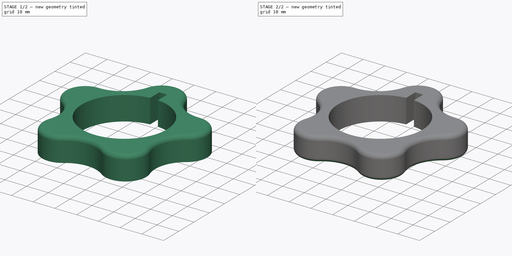
[diagram: build sequence overview — one tinted view per stage of 2, left to right]
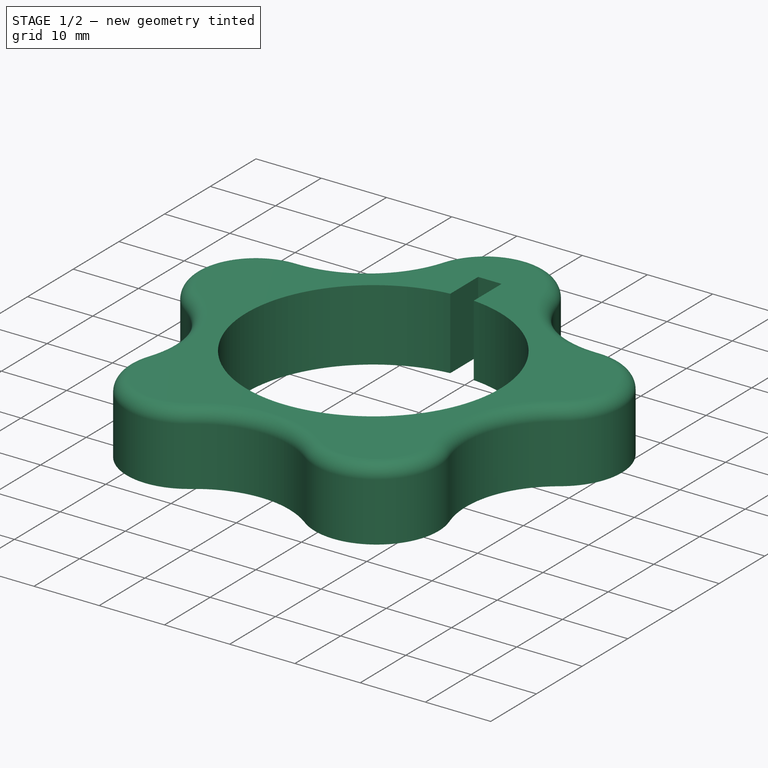
[diagram: stage 1 of 2 — iso view after this stage's code; geometry added in this stage tinted green]
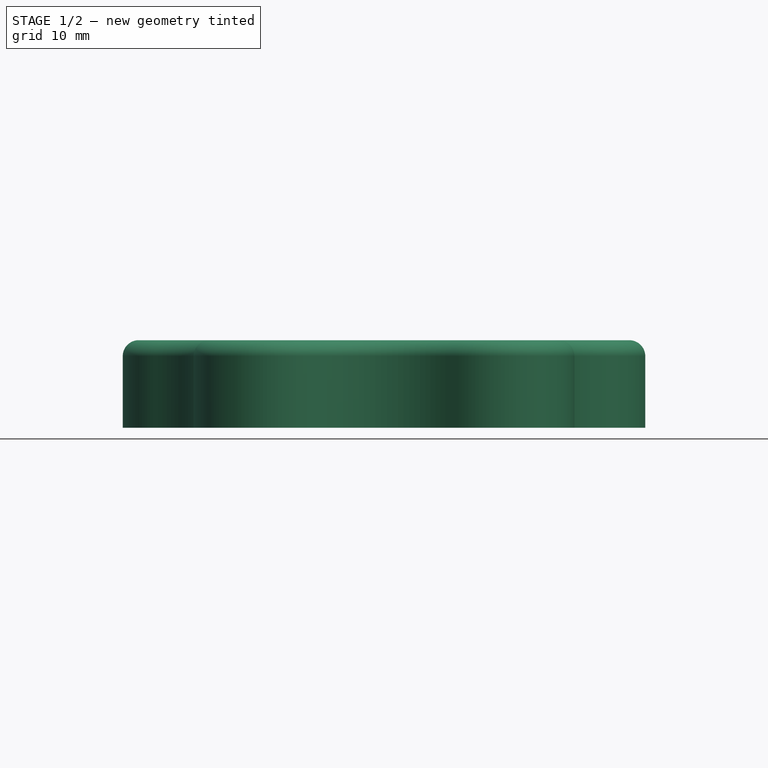
[diagram: stage 1 of 2 — front view after this stage's code; geometry added in this stage tinted green]
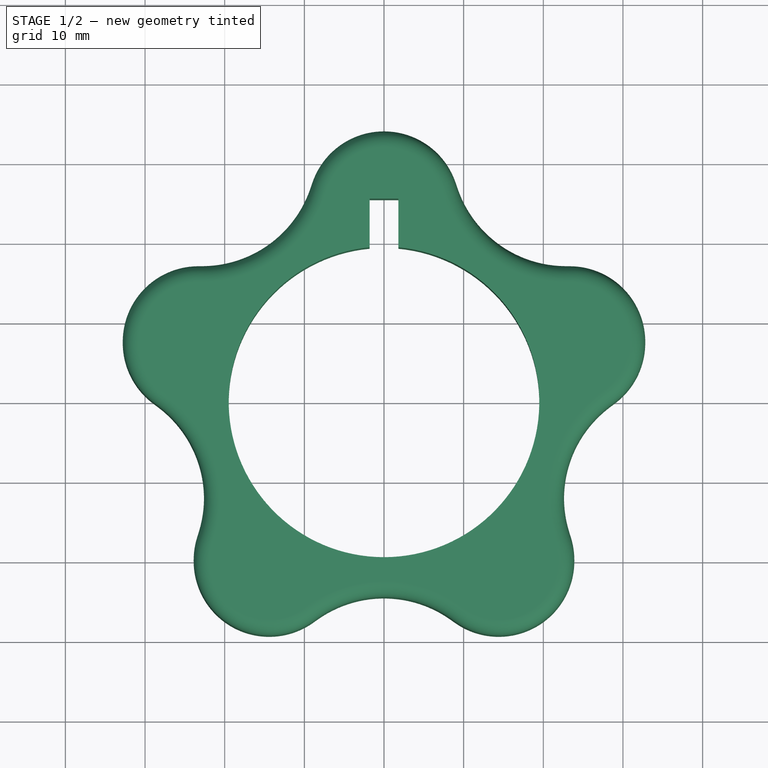
[diagram: stage 1 of 2 — top view after this stage's code; geometry added in this stage tinted green]
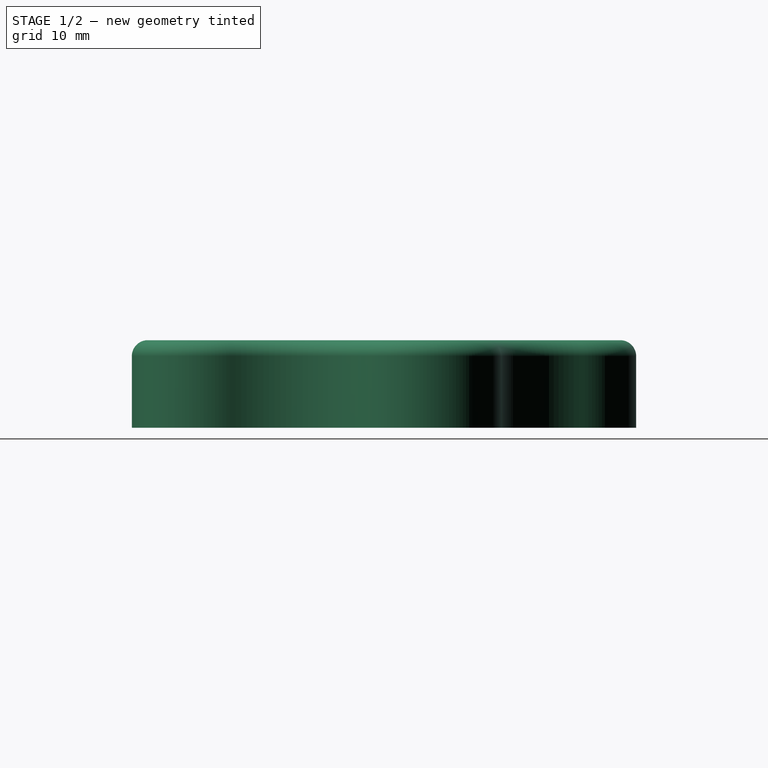
[diagram: stage 1 of 2 — right view after this stage's code; geometry added in this stage tinted green]
FCSTD DOCUMENT  (FreeCAD 0.16RUnknown)
Label: shower_knob
License: All rights reserved
LicenseURL: http://en.wikipedia.org/wiki/All_rights_reserved
objects: PartDesign::Fillet×2, Sketcher::SketchObject×1, PartDesign::Pad×1
note: 5 computed .brp shape members not serialized (recipe doc carries the construction recipe); baked Part::Feature solids carry a one-line shape summary decoded from their .brp

FEATURE [Sketcher::SketchObject] Sketch
  sketch-geometry (38):
    g0: LineSegment [constr] StartX=-65.1212 StartY=-21.1591 StartZ=0 EndX=58.2466 EndY=18.9255 EndZ=0
    g1: LineSegment [constr] StartX=-35.5777 StartY=48.9685 StartZ=0 EndX=34.602 EndY=-47.6255 EndZ=0
    g2: LineSegment [constr] StartX=33.9599 StartY=46.7418 StartZ=0 EndX=-38.4665 EndY=-52.9446 EndZ=0
    g3: LineSegment [constr] StartX=67.2563 StartY=-21.8529 StartZ=0 EndX=-58.4492 EndY=18.9913 EndZ=0
    g4: LineSegment [constr] StartX=0 StartY=-48.34 StartZ=0 EndX=0 EndY=55.4252 EndZ=0
    g5: GeomPoint [constr] X=0 Y=34 Z=0
    g6: GeomPoint [constr] X=-19.9847 Y=-27.5066 Z=0
    g7: GeomPoint [constr] X=19.9847 Y=-27.5066 Z=0
    g8: GeomPoint [constr] X=32.3359 Y=10.5066 Z=0
    g9: GeomPoint [constr] X=-32.3359 Y=10.5066 Z=0
    g10: Circle [constr] CenterX=0 CenterY=0 CenterZ=0 NormalX=0 NormalY=0 NormalZ=1 Radius=34
    g11: Circle [constr] CenterX=0 CenterY=0 CenterZ=0 NormalX=0 NormalY=0 NormalZ=1 Radius=24.5
    g12: LineSegment StartX=8.98016 StartY=27.5746 StartZ=0 EndX=9.23741 EndY=26.8203 EndZ=0
    g13: LineSegment StartX=22.6531 StartY=17.0732 StartZ=0 EndX=23.45 EndY=17.0616 EndZ=0
    g14: LineSegment StartX=29 StartY=-0.0196284 StartZ=0 EndX=28.3621 EndY=-0.497377 EndZ=0
    g15: LineSegment StartX=23.2378 StartY=-16.2684 StartZ=0 EndX=23.473 EndY=-17.0299 EndZ=0
    g16: LineSegment StartX=8.94282 StartY=-27.5867 StartZ=0 EndX=8.29134 EndY=-27.1277 EndZ=0
    g17: LineSegment StartX=-8.29134 StartY=-27.1277 StartZ=0 EndX=-8.94282 EndY=-27.5867 EndZ=0
    g18: LineSegment StartX=-23.473 StartY=-17.0299 StartZ=0 EndX=-23.2378 EndY=-16.2684 EndZ=0
    g19: LineSegment StartX=-28.3621 StartY=-0.497377 StartZ=0 EndX=-29 EndY=-0.0196284 EndZ=0
    g20: LineSegment StartX=-23.45 StartY=17.0616 StartZ=0 EndX=-22.6531 EndY=17.0732 EndZ=0
    g21: LineSegment StartX=-9.23741 StartY=26.8203 StartZ=0 EndX=-8.98016 EndY=27.5746 EndZ=0
    g22: ArcOfCircle CenterX=23.3123 CenterY=7.57461 CenterZ=0 NormalX=0 NormalY=0 NormalZ=1 Radius=9.48803 StartAngle=5.35522 EndAngle=7.83947
    g23: ArcOfCircle CenterX=22.862 CenterY=31.4668 CenterZ=0 NormalX=0 NormalY=0 NormalZ=1 Radius=14.3951 StartAngle=3.47026 EndAngle=4.69788
    g24: ArcOfCircle CenterX=0 CenterY=24.512 CenterZ=0 NormalX=0 NormalY=0 NormalZ=1 Radius=9.48803 StartAngle=0.328671 EndAngle=2.81292
    g25: ArcOfCircle CenterX=-22.862 CenterY=31.4668 CenterZ=0 NormalX=0 NormalY=0 NormalZ=1 Radius=14.3951 StartAngle=4.7269 EndAngle=5.95451
    g26: ArcOfCircle CenterX=-23.3123 CenterY=7.57461 CenterZ=0 NormalX=0 NormalY=0 NormalZ=1 Radius=9.48803 StartAngle=1.58531 EndAngle=4.06956
    g27: ArcOfCircle CenterX=-36.9914 CenterY=-12.0192 CenterZ=0 NormalX=0 NormalY=0 NormalZ=1 Radius=14.3951 StartAngle=5.98354 EndAngle=7.21115
    g28: ArcOfCircle CenterX=-14.4078 CenterY=-19.8306 CenterZ=0 NormalX=0 NormalY=0 NormalZ=1 Radius=9.48803 StartAngle=2.84195 EndAngle=5.3262
    g29: ArcOfCircle CenterX=0 CenterY=-38.8951 CenterZ=0 NormalX=0 NormalY=0 NormalZ=1 Radius=14.3951 StartAngle=0.95699 EndAngle=2.1846
    g30: ArcOfCircle CenterX=14.4078 CenterY=-19.8306 CenterZ=0 NormalX=0 NormalY=0 NormalZ=1 Radius=9.48803 StartAngle=4.09858 EndAngle=6.58283
    g31: ArcOfCircle CenterX=36.9914 CenterY=-12.0192 CenterZ=0 NormalX=0 NormalY=0 NormalZ=1 Radius=14.3951 StartAngle=2.21363 EndAngle=3.44124
    g32: Circle [constr] CenterX=0 CenterY=0 CenterZ=0 NormalX=0 NormalY=0 NormalZ=1 Radius=24.512
    g33: Circle [constr] CenterX=-1e-12 CenterY=0 CenterZ=0 NormalX=0 NormalY=0 NormalZ=1 Radius=29
    g34: ArcOfCircle CenterX=0 CenterY=0 CenterZ=0 NormalX=0 NormalY=0 NormalZ=1 Radius=19.5 StartAngle=1.66324 EndAngle=7.76154
    g35: LineSegment StartX=-1.8 StartY=19.4167 StartZ=0 EndX=-1.8 EndY=25.5167 EndZ=0
    g36: LineSegment StartX=1.8 StartY=19.4167 StartZ=0 EndX=1.8 EndY=25.5167 EndZ=0
    g37: LineSegment StartX=-1.8 StartY=25.5167 StartZ=0 EndX=1.8 EndY=25.5167 EndZ=0
  constraints (93):
    c: PointOnObject(g4,g-2)
    c: Angle(g0,g4) = 1.25664
    c: Angle(g1,g0) = 1.25664
    c: Angle(g2,g1) = 1.25664
    c: Angle(g3,g2) = 1.25664
    c: PointOnObject(g5,g4)
    c: PointOnObject(g5,g10)
    c: PointOnObject(g9,g3)
    c: PointOnObject(g9,g10)
    c: PointOnObject(g6,g2)
    c: PointOnObject(g6,g10)
    c: PointOnObject(g7,g1)
    c: PointOnObject(g7,g10)
    c: PointOnObject(g8,g0)
    c: PointOnObject(g8,g10)
    c: Radius(g10) = 34
    c: Radius(g11) = 24.5
    c: Coincident(g10,g-1)
    c: PointOnObject(g-1,g2)
    c: PointOnObject(g-1,g1)
    c: PointOnObject(g-1,g3)
    c: PointOnObject(g-1,g0)
    c: Tangent(g13,g22) = 1.5708
    c: Tangent(g14,g22) = 1.5708
    c: PointOnObject(g22,g0)
    c: Tangent(g22,g10)
    c: Tangent(g13,g23) = -1.5708
    c: Tangent(g12,g23) = -1.5708
    c: Tangent(g23,g11)
    c: Coincident(g11,g-1)
    c: PointOnObject(g23,g2)
    c: Tangent(g21,g24) = 1.5708
    c: Tangent(g12,g24) = 1.5708
    c: PointOnObject(g24,g4)
    c: Tangent(g24,g10)
    c: Tangent(g21,g25) = -1.5708
    c: Tangent(g20,g25) = -1.5708
    c: PointOnObject(g25,g1)
    c: Tangent(g25,g11)
    c: Tangent(g20,g26) = 1.5708
    c: Tangent(g19,g26) = 1.5708
    c: Tangent(g26,g10)
    c: PointOnObject(g26,g3)
    c: Tangent(g19,g27) = -1.5708
    c: Tangent(g18,g27) = -1.5708
    c: Tangent(g27,g11)
    c: PointOnObject(g27,g0)
    c: Tangent(g18,g28) = 1.5708
    c: Tangent(g17,g28) = 1.5708
    c: Tangent(g28,g10)
    c: PointOnObject(g28,g2)
    c: Tangent(g17,g29) = -1.5708
    c: Tangent(g16,g29) = -1.5708
    c: Tangent(g29,g11)
    c: PointOnObject(g29,g4)
    c: Tangent(g16,g30) = 1.5708
    c: Tangent(g15,g30) = 1.5708
    c: Tangent(g30,g10)
    c: PointOnObject(g30,g1)
    c: Tangent(g14,g31) = -1.5708
    c: Tangent(g15,g31) = -1.5708
    c: Tangent(g31,g11)
    c: PointOnObject(g31,g3)
    c: Coincident(g32,g-1)
    c: PointOnObject(g24,g32)
    c: PointOnObject(g26,g32)
    c: PointOnObject(g28,g32)
    c: PointOnObject(g30,g32)
    c: PointOnObject(g22,g32)
    c: Coincident(g33,g-1)
    c: PointOnObject(g20,g33)
    c: PointOnObject(g19,g33)
    c: PointOnObject(g18,g33)
    c: PointOnObject(g17,g33)
    c: PointOnObject(g16,g33)
    c: PointOnObject(g15,g33)
    c: PointOnObject(g14,g33)
    c: PointOnObject(g13,g33)
    c: PointOnObject(g12,g33)
    c: PointOnObject(g21,g33)
    c: Radius(g33) = 29
    c: Coincident(g34,g-1)
    c: Radius(g34) = 19.5
    c: Coincident(g35,g34)
    c: Vertical(g35)
    c: Coincident(g36,g34)
    c: Vertical(g36)
    c: Coincident(g37,g35)
    c: Coincident(g37,g36)
    c: Horizontal(g37)
    c: Distance(g37) = 3.6
    c: Distance(g35) = 6.1
    c: Symmetric(g34,g34,g4)
FEATURE [PartDesign::Pad] Pad
  Length = 11
  Length2 = 100
  Sketch = -> Sketch
  Type = 0
FEATURE [PartDesign::Fillet] Fillet
  Base = -> Pad [Edge19]
  Radius = 2
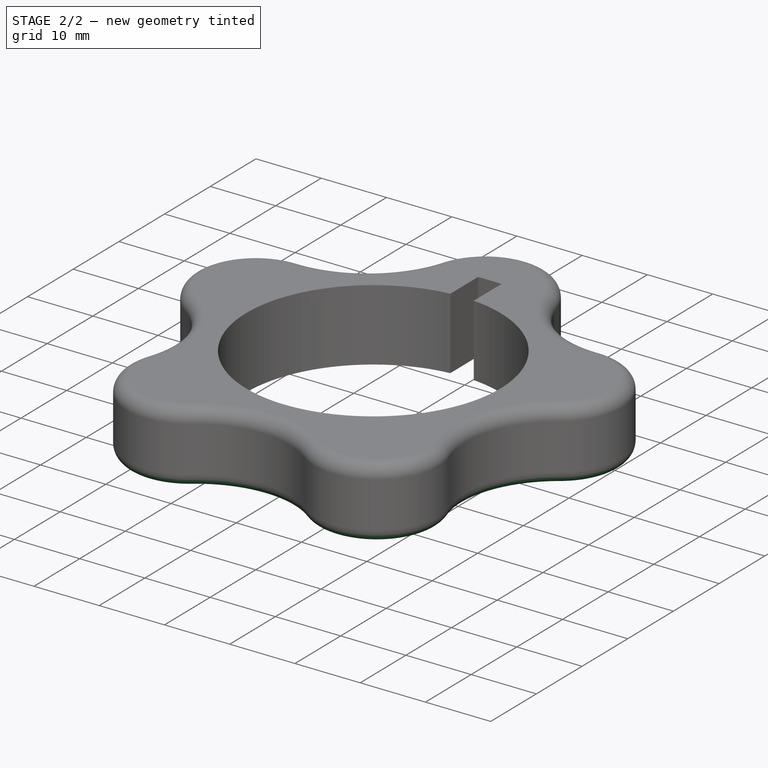
[diagram: stage 2 of 2 — iso view after this stage's code; geometry added in this stage tinted green]
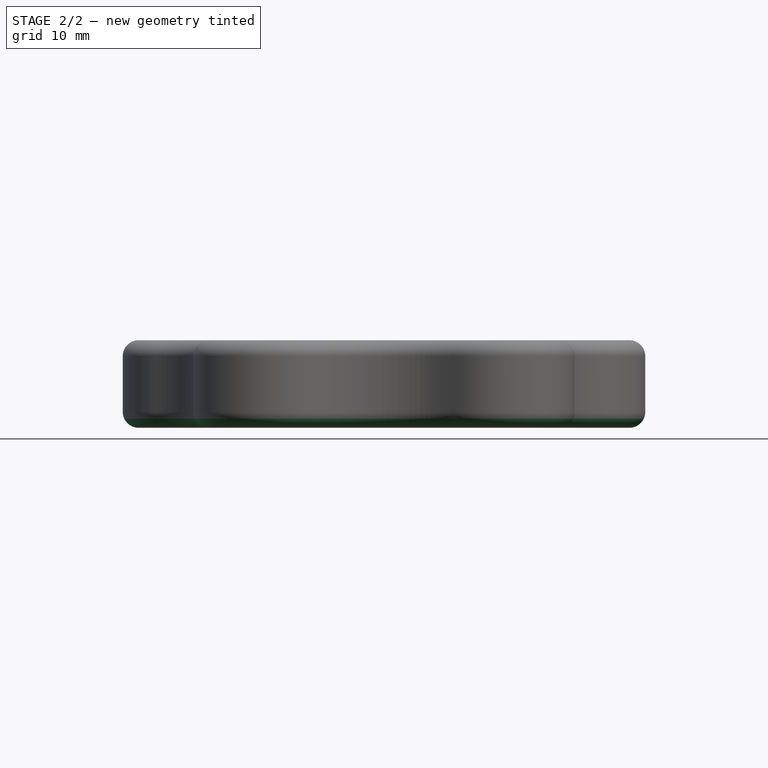
[diagram: stage 2 of 2 — front view after this stage's code; geometry added in this stage tinted green]
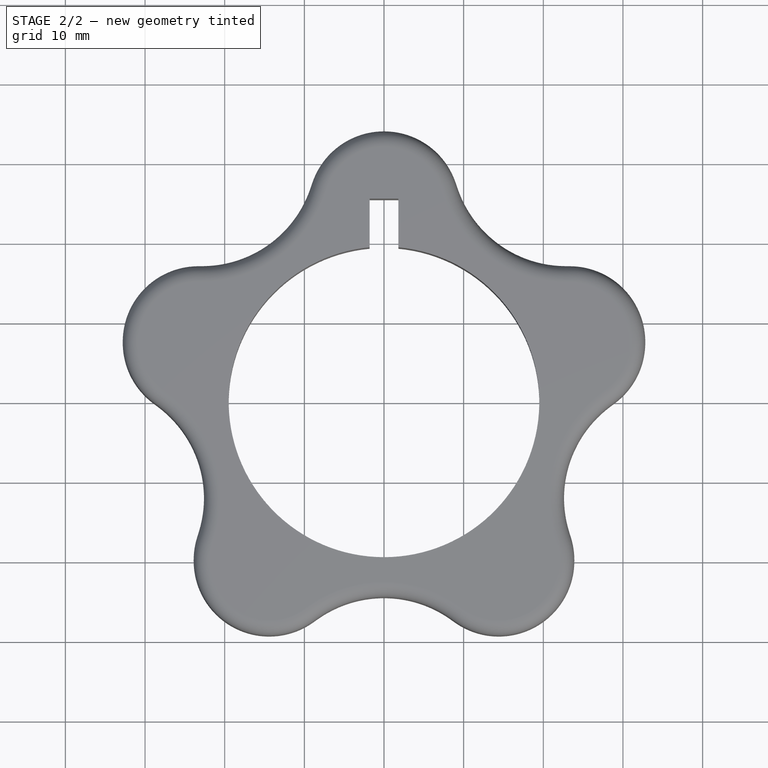
[diagram: stage 2 of 2 — top view after this stage's code; geometry added in this stage tinted green]
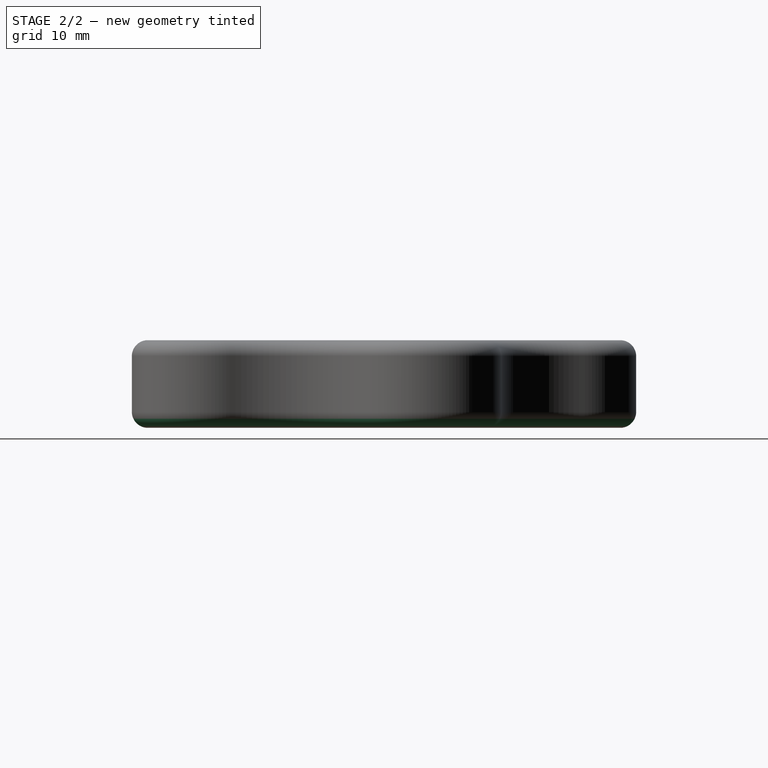
[diagram: stage 2 of 2 — right view after this stage's code; geometry added in this stage tinted green]
FEATURE [PartDesign::Fillet] Fillet001
  Base = -> Fillet [Edge15]
  Radius = 2
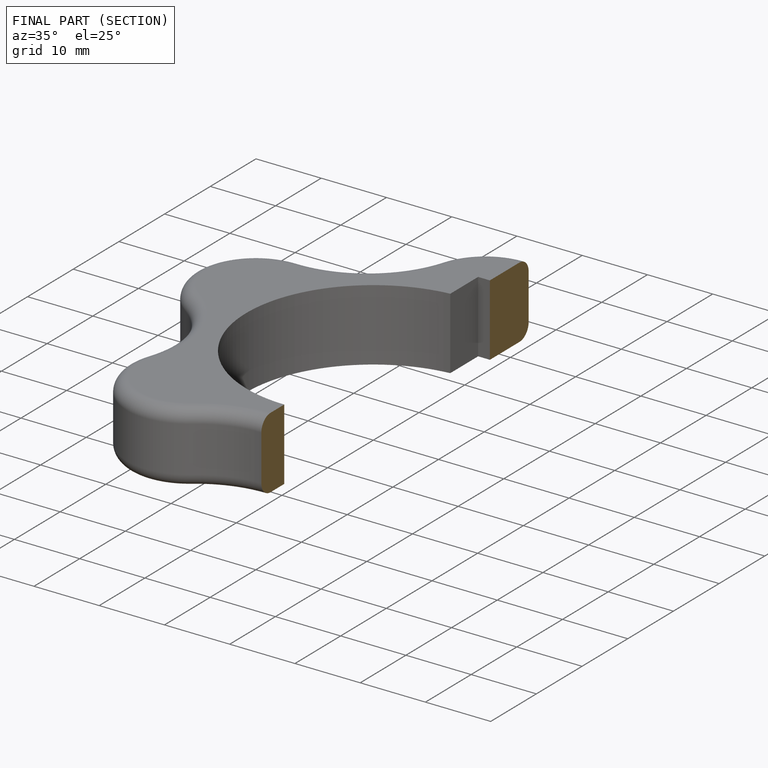
[diagram: finished part — half-section view (interior)]
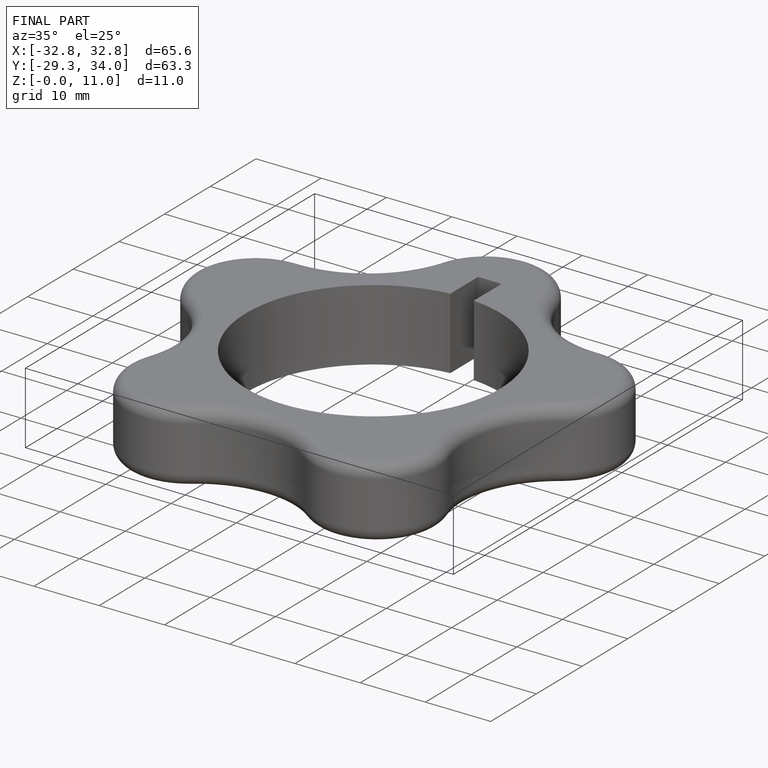
[diagram: finished part — iso view with bounding-box wireframe]
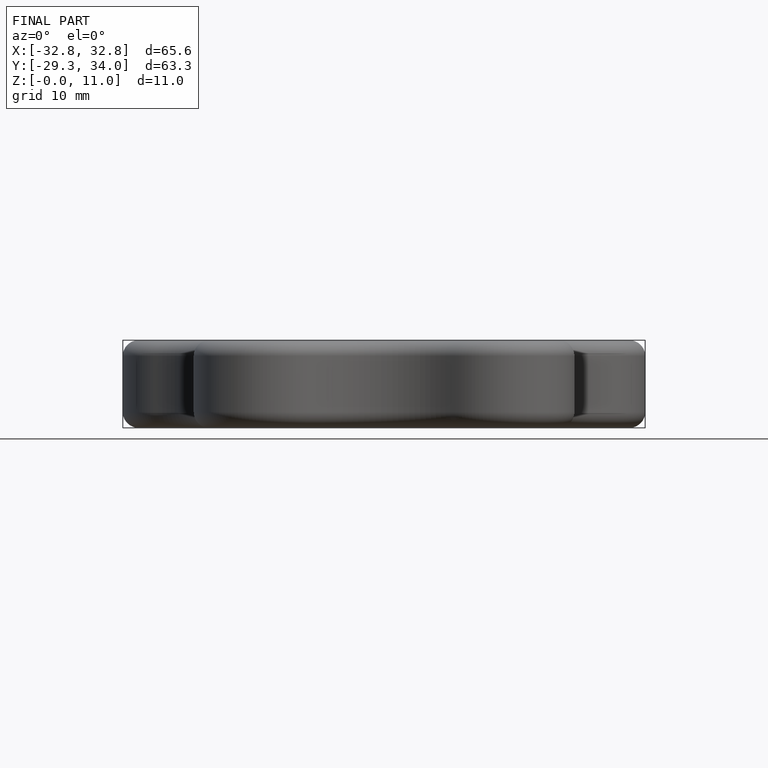
[diagram: finished part — front view with bounding-box wireframe]
